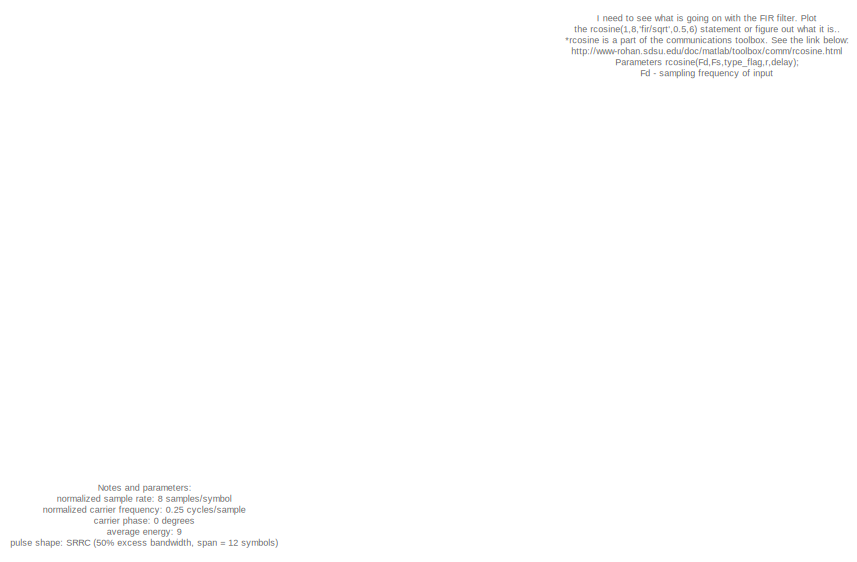
[diagram: root canvas - part 1/2, top left region]
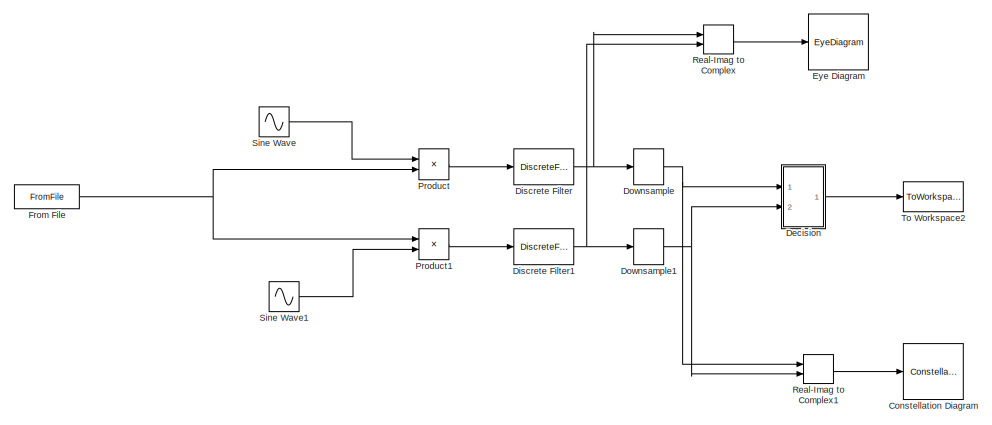
[diagram: root canvas - part 2/2, bottom center region]
MODEL slx_4fbd4660f574
KIND model
CONFIG AbsTol = auto
CONFIG FixedStep = auto
CONFIG MaxStep = auto
CONFIG MinStep = auto
CONFIG RelTol = 1e-3
CONFIG SampleTimeConstraint = Unconstrained
CONFIG Solver = FixedStepDiscrete
CONFIG SolverMode = SingleTasking
CONFIG SolverName = FixedStepDiscrete
CONFIG StartTime = 0.0
CONFIG StopTime = (12+49)*8
BLOCK [ConstellationDiagram] Constellation Diagram
  Ports = [1]
  ScopeSpecificationString = comm.scopes.ConstellationDiagramBlockCfg('CurrentConfiguration', extmgr.ConfigurationSet(extmgr.Configuration('Core','General UI',true),extmgr.Configuration('Core','Source UI',true),extmgr.Configuration('Sources','WiredSimulink',true),extmgr.Configuration('Sources','Simulink',false),extmgr.Configuration('Sources','SimulinkEvent',false),extmgr.Configuration('Sources','File',false),extmgr.Configurat...<+2712ch>
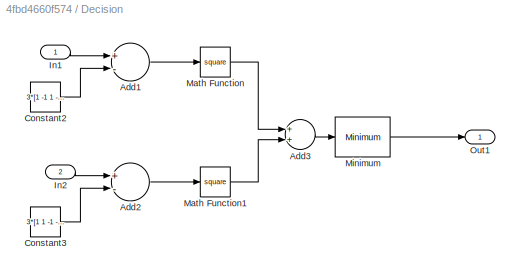
BLOCK [SubSystem] Decision 
  Ports = [2, 1]
  RequestExecContextInheritance = off
  Variant = off
BLOCK [Sum] Decision /Add1
  InputSameDT = off
  Inputs = +-
  OutDataTypeStr = Inherit: Inherit via internal rule
  Ports = [2, 1]
  SaturateOnIntegerOverflow = off
BLOCK [Sum] Decision /Add2
  InputSameDT = off
  Inputs = +-
  OutDataTypeStr = Inherit: Inherit via internal rule
  Ports = [2, 1]
  SaturateOnIntegerOverflow = off
BLOCK [Sum] Decision /Add3
  InputSameDT = off
  OutDataTypeStr = Inherit: Inherit via internal rule
  Ports = [2, 1]
  SaturateOnIntegerOverflow = off
BLOCK [Constant] Decision /Constant2
  Value = 3*[1 -1 1 -1] /sqrt(2)
BLOCK [Constant] Decision /Constant3
  Value = 3*[1 1 -1 -1] /sqrt(2)
BLOCK [Inport] Decision /In1
  IconDisplay = Port number
BLOCK [Inport] Decision /In2
  IconDisplay = Port number
  Port = 2
BLOCK [Math] Decision /Math Function
  Operator = square
  Ports = [1, 1]
BLOCK [Math] Decision /Math Function1
  Operator = square
  Ports = [1, 1]
BLOCK [Reference] Decision /Minimum  REF=dspstat3/Minimum
  Ports = [1, 1]
  SourceBlock = dspstat3/Minimum
  SourceType = Minimum
  UserDataPersistent = on
BLOCK [Outport] Decision /Out1
  IconDisplay = Port number
BLOCK [DiscreteFilter] Discrete Filter
  Denominator = [1]
  InputPortMap = u0
  Numerator = rcosine(1,8,'fir/sqrt',0.5,6)
  Ports = [1, 1]
BLOCK [DiscreteFilter] Discrete Filter1
  Denominator = [1]
  InputPortMap = u0
  Numerator = rcosine(1,8,'fir/sqrt',0.5,6)
  Ports = [1, 1]
BLOCK [DownSample] Downsample
  InputProcessing = Inherited (this choice will be removed - see release notes)
  N = 8
  RateOptions = Allow multirate processing
BLOCK [DownSample] Downsample1
  InputProcessing = Inherited (this choice will be removed - see release notes)
  N = 8
  RateOptions = Allow multirate processing
BLOCK [EyeDiagram] Eye Diagram
  Ports = [1]
  ScopeSpecificationString = comm.scopes.EyeDiagramBlockCfg('CurrentConfiguration', extmgr.ConfigurationSet(extmgr.Configuration('Core','General UI',true),extmgr.Configuration('Core','Source UI',true),extmgr.Configuration('Sources','WiredSimulink',true),extmgr.Configuration('Sources','Simulink',false),extmgr.Configuration('Sources','File',false),extmgr.Configuration('Sources','Workspace',false),extmgr.Configuration('Sources',...<+1937ch>
BLOCK [FromFile] From File
  FileName = qpskdata.mat
  SampleTime = 1
BLOCK [Product] Product
  InputSameDT = off
  OutDataTypeStr = Inherit: Inherit via internal rule
  Ports = [2, 1]
  RndMeth = Floor
  SaturateOnIntegerOverflow = off
BLOCK [Product] Product1
  InputSameDT = off
  OutDataTypeStr = Inherit: Inherit via internal rule
  Ports = [2, 1]
  RndMeth = Floor
  SaturateOnIntegerOverflow = off
BLOCK [RealImagToComplex] Real-Imag to Complex
  Ports = [2, 1]
BLOCK [RealImagToComplex] Real-Imag to Complex1
  Ports = [2, 1]
BLOCK [Sin] Sine Wave
  Amplitude = sqrt(2)
  Frequency = 2*pi/4
  Phase = pi/2
  Ports = [0, 1]
  SampleTime = 1
BLOCK [Sin] Sine Wave1
  Amplitude = -sqrt(2)
  Frequency = 2*pi/4
  Ports = [0, 1]
  SampleTime = 1
BLOCK [ToWorkspace] To Workspace2
  FixptAsFi = on
  MaxDataPoints = inf
  Ports = [1]
  SampleTime = -1
  Save2DSignal = 2-D array (concatenate along first dimension)
  VariableName = QPSKbits
ANNOTATION (root): I need to see what is going on with the FIR filter. Plot the rcosine(1,8,'fir/sqrt',0.5,6) statement or figure out what it is.. *rcosine is a part of the communications toolbox. See the link below: http://www-rohan.sdsu.edu/doc/matlab/toolbox/comm/rcosine.html Parameters rcosine(Fd,Fs,type_flag,r,delay); Fd - sampling frequency of input Fs - sampling frequency of filter flag_type - see table in th...<+423ch>
ANNOTATION (root): Notes and parameters: normalized sample rate: 8 samples/symbol normalized carrier frequency: 0.25 cycles/sample carrier phase: 0 degrees average energy: 9 pulse shape: SRRC (50% excess bandwidth, span = 12 symbols) symbol clock offset: 0 input file qpskdata.mat input message length: 49 symbols (98 bits or 14 ASCII characters) Simulation Stop Time The simulation stop time is based on the length of ...<+11ch>
LINE Decision /Add1:1 -> Decision /Math Function:1
LINE Decision /Add2:1 -> Decision /Math Function1:1
LINE Decision /Add3:1 -> Decision /Minimum:1
LINE Decision /Constant2:1 -> Decision /Add1:2
LINE Decision /Constant3:1 -> Decision /Add2:2
LINE Decision /In1:1 -> Decision /Add1:1
LINE Decision /In2:1 -> Decision /Add2:1
LINE Decision /Math Function1:1 -> Decision /Add3:2
LINE Decision /Math Function:1 -> Decision /Add3:1
LINE Decision /Minimum:1 -> Decision /Out1:1
LINE Decision :1 -> To Workspace2:1
NET Discrete Filter1:1 -> Downsample1:1, Real-Imag to Complex:2
NET Discrete Filter:1 -> Downsample:1, Real-Imag to Complex:1
NET Downsample1:1 -> Decision :2, Real-Imag to Complex1:2
NET Downsample:1 -> Decision :1, Real-Imag to Complex1:1
NET From File:1 -> Product1:1, Product:2
LINE Product1:1 -> Discrete Filter1:1
LINE Product:1 -> Discrete Filter:1
LINE Real-Imag to Complex1:1 -> Constellation Diagram:1
LINE Real-Imag to Complex:1 -> Eye Diagram:1
LINE Sine Wave1:1 -> Product1:2
LINE Sine Wave:1 -> Product:1
note: NET lines group one-source signal fan-out (src -> all destinations, sorted); 1:1 wires keep LINE
